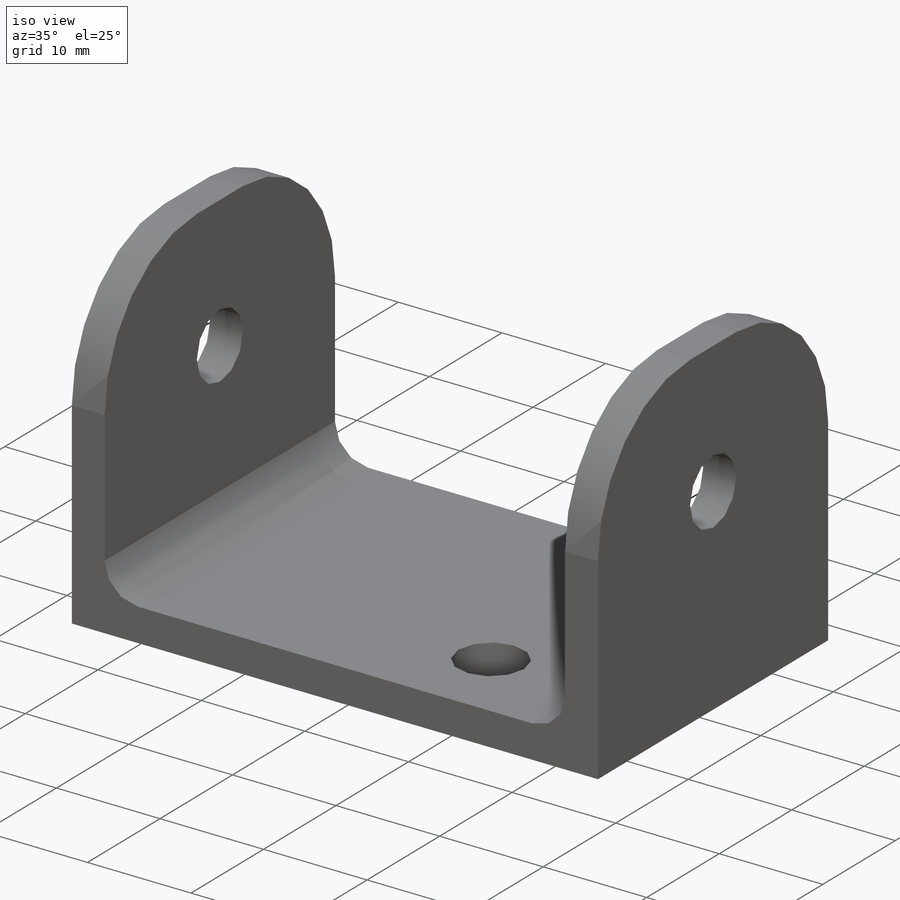
[diagram: iso view]
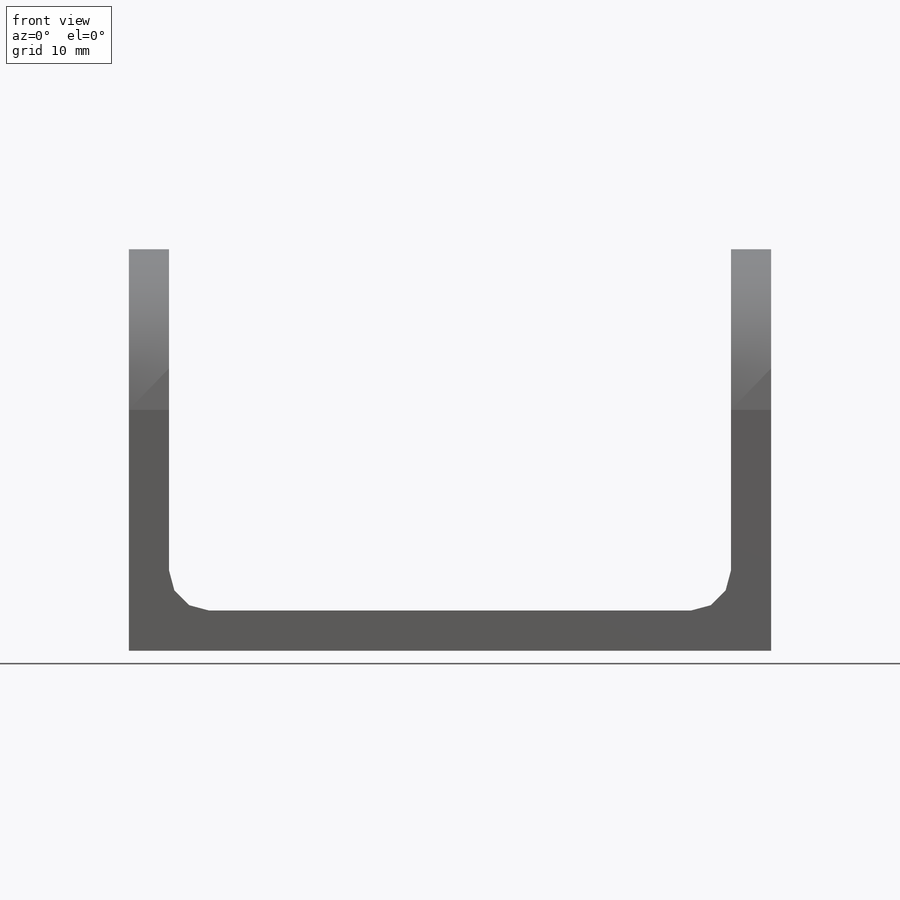
[diagram: front view]
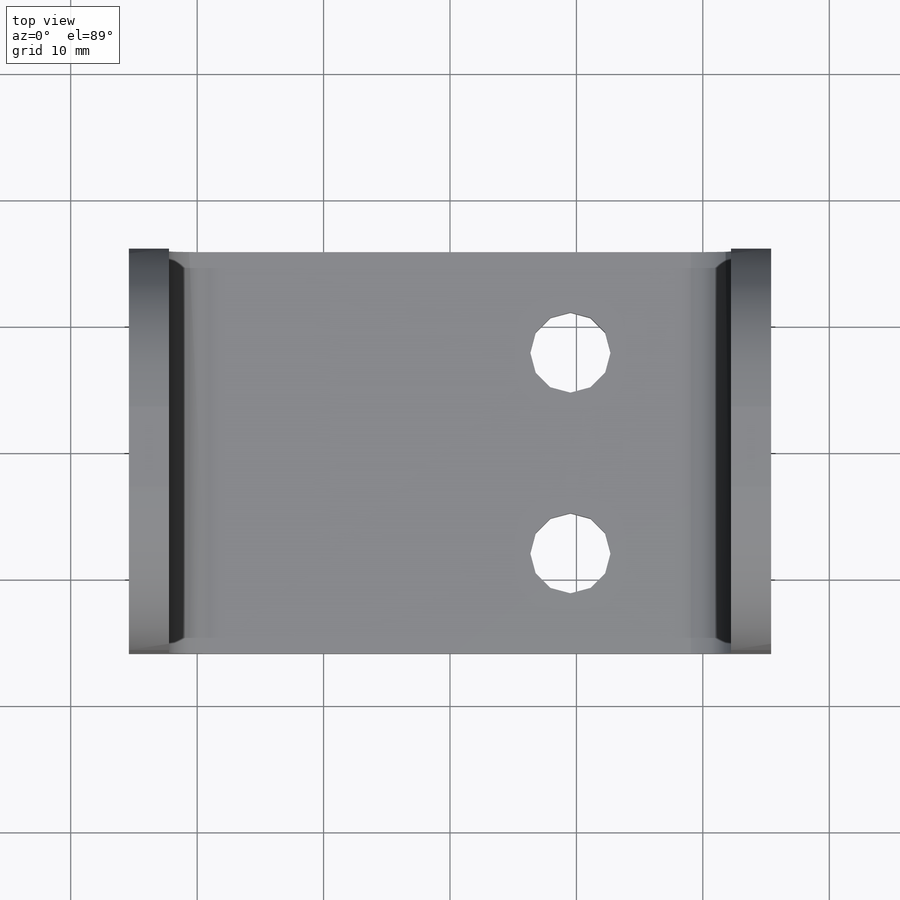
[diagram: top view]
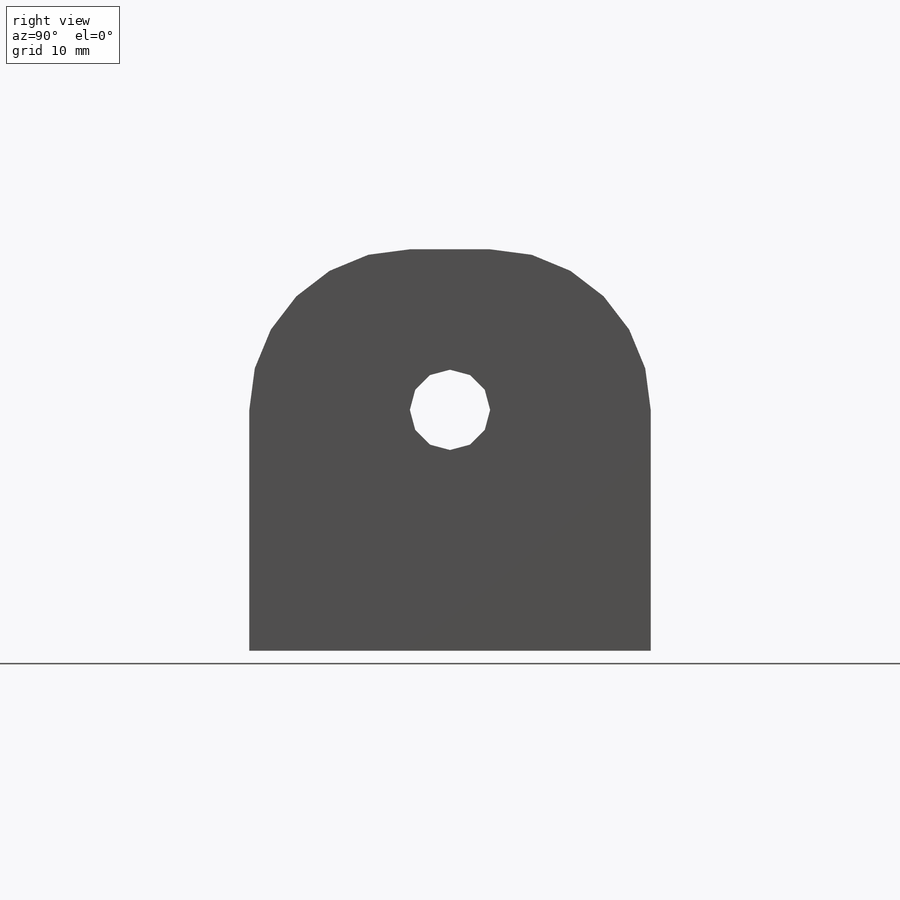
[diagram: right view]
SOLIDWORKS PART (.sldprt)
format: sldprt  version: not decoded by parser v0  size: 235,520 bytes
history: native  units: mm
features: sketch x5, cut_extrude x3, fillet x2, material x1, extrude x1 (+11 scaffold rows collapsed)
feature tree (23):
  scaffold x11  (default folders/planes/origin — collapsed)
  material  "6061-T6 (SS)"
  sketch  "Sketch1"  dims[D1=31.75mm D2=50.8mm]
  extrude  "Boss-Extrude1"  Depth=31.75mm
  sketch  "Sketch2"  dims[D1=3.175mm D2=3.175mm]
  cut_extrude  "Cut-Extrude1"  [1 undecoded]
  sketch  "Sketch3"  dims[c1.D1=~7.178217mm c1.D2=6.35mm c2.D1=15.875mm c2.D3=12.7mm]
  cut_extrude  "Cut-Extrude2"  [1 undecoded]
  fillet  "Fillet1"  Radius=3.175mm
  sketch  "Sketch4"  dims[c1.D1=~8.595585mm c1.D2=6.35mm c2.D1=12.7mm c2.D2=31.75mm c3.D1=19.05mm]
  cut_extrude  "Cut-Extrude3"  [1 undecoded]
  fillet  "Fillet2"  Radius=12.7mm
  sketch  "3DSketch1"  dims[D1=12.7mm]
decode coverage: 8 of 11 modeling features carry decoded parameters
note: ~ marks probable driven/reference dimensions
note: 3 parameter values undecoded
summary: no parameter record found for 3 features
note: suppression state not decoded; provenance and decode notes live in map.json
